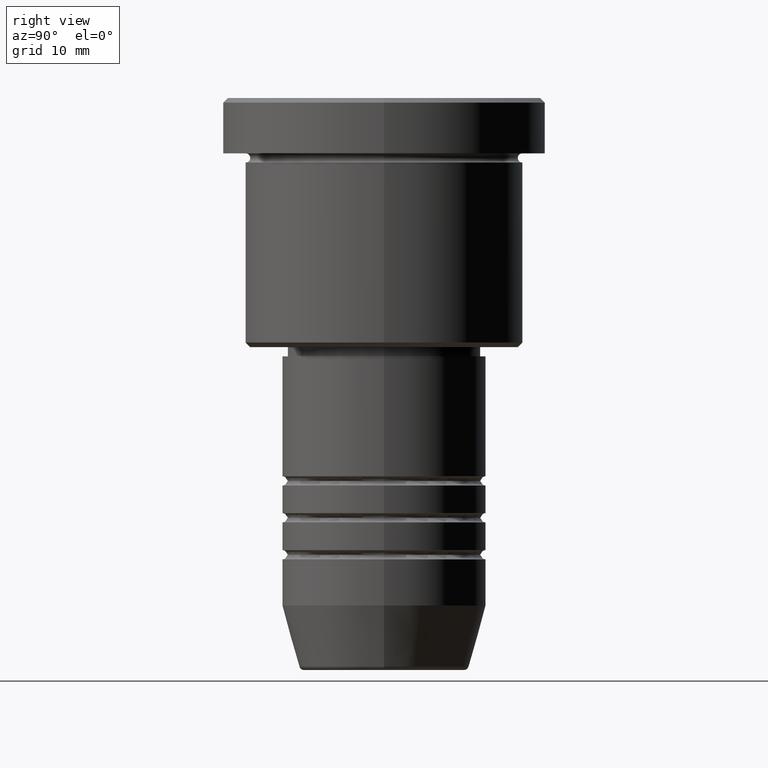
[diagram: clean part render]
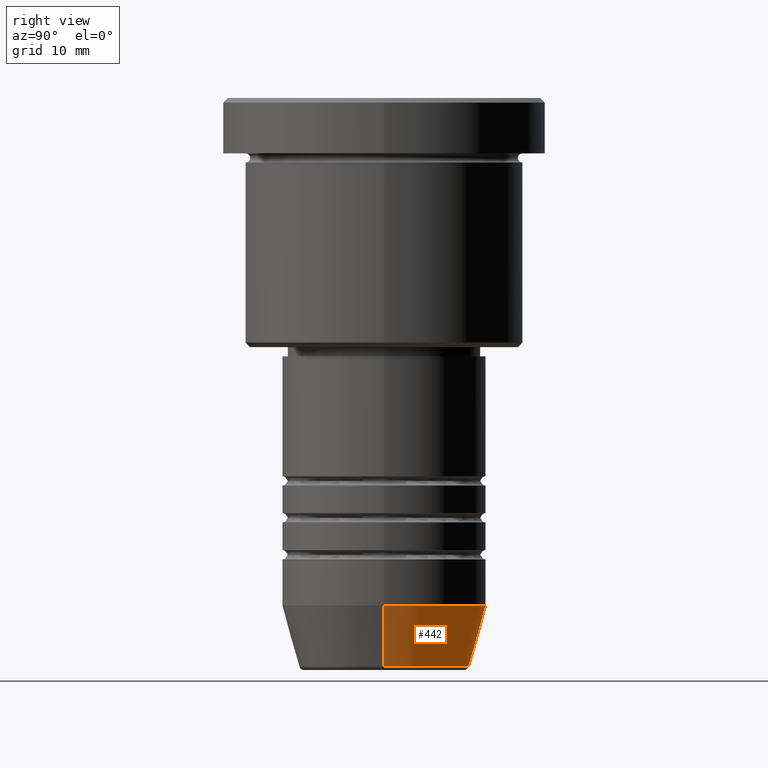
[diagram: same view with one face highlighted and labeled with its STEP entity id]
A machine part, right view. The second image highlights one B-rep face of the part: STEP entity #442.
In plain terms, the highlighted conical surface has half-angle 15 deg.
Its self-contained STEP definition (entity closure, byte-faithful):
#6 = DIRECTION ( 'NONE',  ( -0.000000000000000000, -0.000000000000000000, 1.000000000000000000 ) ) ;
#43 = FACE_OUTER_BOUND ( 'NONE', #110, .T. ) ;
#110 = EDGE_LOOP ( 'NONE', ( #525, #476, #585, #280 ) ) ;
#133 = CARTESIAN_POINT ( 'NONE',  ( 9.223655072137185940, 0.000000000000000000, -61.62940952255126348 ) ) ;
#216 = AXIS2_PLACEMENT_3D ( 'NONE', #301, #6, #731 ) ;
#231 = VERTEX_POINT ( 'NONE', #818 ) ;
#255 = CONICAL_SURFACE ( 'NONE', #1024, 11.00000000000000000, 0.2617993877991502960 ) ;
#267 = VECTOR ( 'NONE', #1126, 1000.000000000000114 ) ;
#280 = ORIENTED_EDGE ( 'NONE', *, *, #544, .F. ) ;
#301 = CARTESIAN_POINT ( 'NONE',  ( 0.000000000000000000, 0.000000000000000000, -55.00000000000000000 ) ) ;
#337 = DIRECTION ( 'NONE',  ( -0.000000000000000000, -0.000000000000000000, 1.000000000000000000 ) ) ;
#345 = EDGE_CURVE ( 'NONE', #955, #943, #766, .T. ) ;
#432 = CARTESIAN_POINT ( 'NONE',  ( 11.00000000000000000, 0.000000000000000000, -55.00000000000000000 ) ) ;
#442 = ADVANCED_FACE ( 'NONE', ( #43 ), #255, .T. ) ;
#453 = VECTOR ( 'NONE', #708, 1000.000000000000114 ) ;
#476 = ORIENTED_EDGE ( 'NONE', *, *, #678, .T. ) ;
#525 = ORIENTED_EDGE ( 'NONE', *, *, #345, .T. ) ;
#544 = EDGE_CURVE ( 'NONE', #955, #231, #634, .T. ) ;
#576 = CARTESIAN_POINT ( 'NONE',  ( -9.223655072137185940, 1.238341722557647004E-15, -61.62940952255126348 ) ) ;
#582 = LINE ( 'NONE', #768, #267 ) ;
#585 = ORIENTED_EDGE ( 'NONE', *, *, #1051, .F. ) ;
#634 = LINE ( 'NONE', #432, #453 ) ;
#668 = CARTESIAN_POINT ( 'NONE',  ( -11.00000000000000000, 1.347111479062088405E-15, -55.00000000000000000 ) ) ;
#678 = EDGE_CURVE ( 'NONE', #943, #1106, #582, .T. ) ;
#708 = DIRECTION ( 'NONE',  ( 0.2588190451025215166, 0.000000000000000000, 0.9659258262890679791 ) ) ;
#731 = DIRECTION ( 'NONE',  ( 1.000000000000000000, 0.000000000000000000, 0.000000000000000000 ) ) ;
#742 = DIRECTION ( 'NONE',  ( -0.000000000000000000, -0.000000000000000000, 1.000000000000000000 ) ) ;
#766 = CIRCLE ( 'NONE', #1059, 9.223655072137185940 ) ;
#768 = CARTESIAN_POINT ( 'NONE',  ( -11.00000000000000000, 1.347111479062088405E-15, -55.00000000000000000 ) ) ;
#818 = CARTESIAN_POINT ( 'NONE',  ( 11.00000000000000000, 0.000000000000000000, -55.00000000000000000 ) ) ;
#844 = DIRECTION ( 'NONE',  ( 1.000000000000000000, 0.000000000000000000, 0.000000000000000000 ) ) ;
#888 = DIRECTION ( 'NONE',  ( 1.000000000000000000, 0.000000000000000000, 0.000000000000000000 ) ) ;
#935 = CARTESIAN_POINT ( 'NONE',  ( 0.000000000000000000, 0.000000000000000000, -61.62940952255126348 ) ) ;
#943 = VERTEX_POINT ( 'NONE', #576 ) ;
#955 = VERTEX_POINT ( 'NONE', #133 ) ;
#1024 = AXIS2_PLACEMENT_3D ( 'NONE', #1134, #337, #888 ) ;
#1051 = EDGE_CURVE ( 'NONE', #231, #1106, #1119, .T. ) ;
#1059 = AXIS2_PLACEMENT_3D ( 'NONE', #935, #742, #844 ) ;
#1106 = VERTEX_POINT ( 'NONE', #668 ) ;
#1119 = CIRCLE ( 'NONE', #216, 11.00000000000000000 ) ;
#1126 = DIRECTION ( 'NONE',  ( -0.2588190451025215166, 3.169619151431774802E-17, 0.9659258262890679791 ) ) ;
#1134 = CARTESIAN_POINT ( 'NONE',  ( 0.000000000000000000, 0.000000000000000000, -55.00000000000000000 ) ) ;